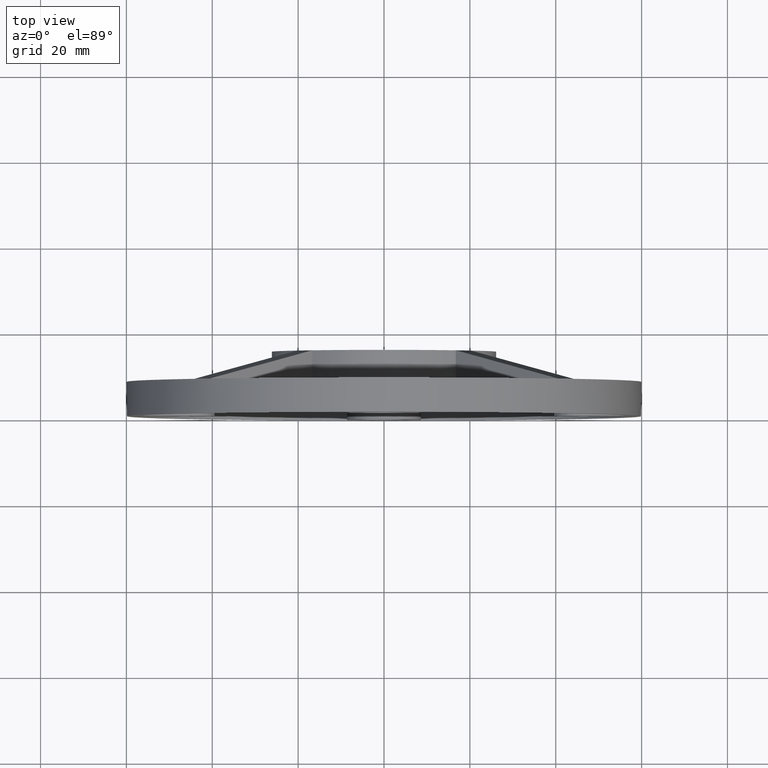
[diagram: clean part render]
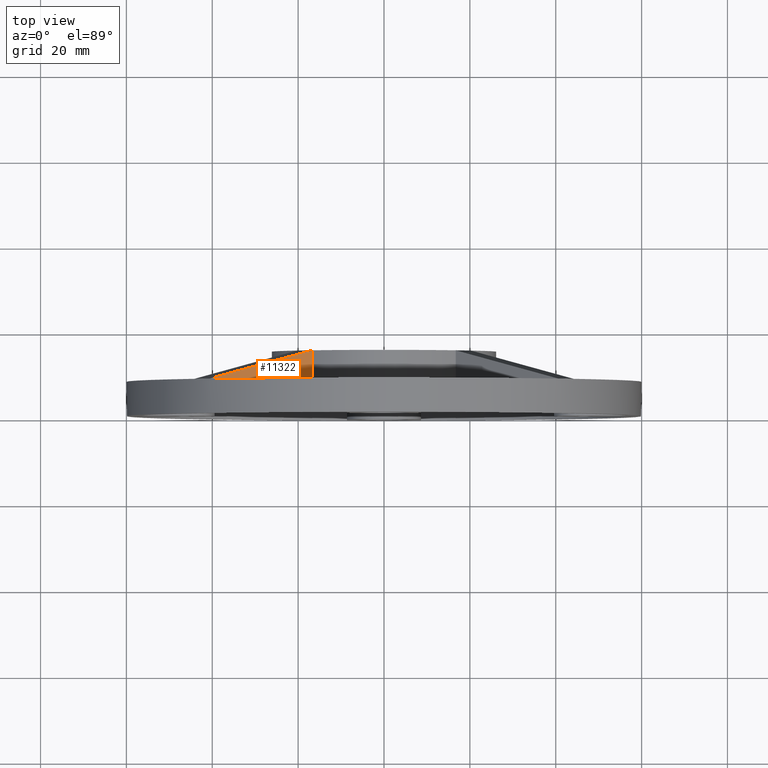
[diagram: same view with one face highlighted and labeled with its STEP entity id]
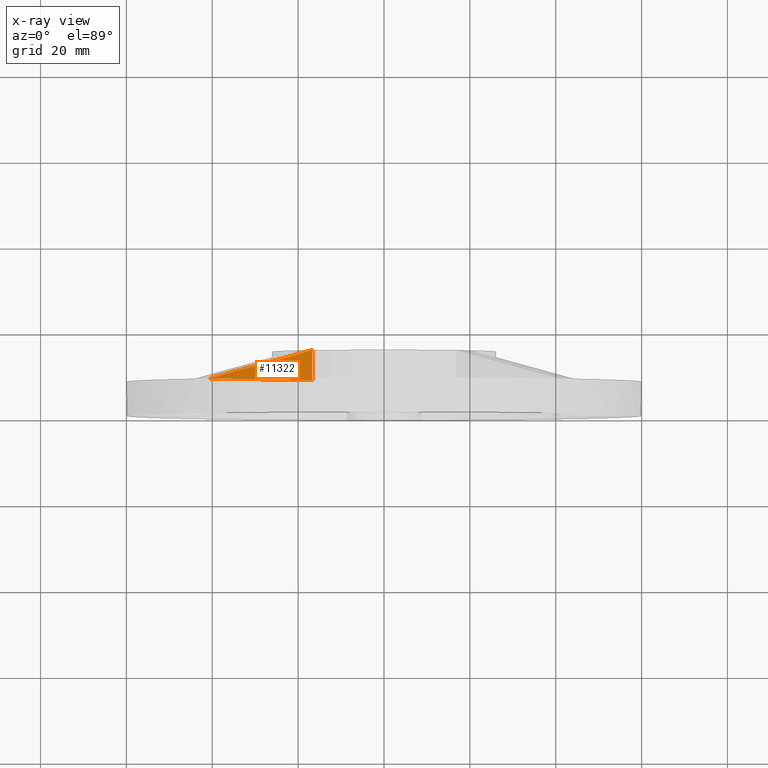
[diagram: x-ray of the same camera — body ghosted, the highlighted face saturated]
A machine part, top view. The second image highlights one B-rep face of the part: STEP entity #11322.
The next image is the same camera in x-ray: the body ghosted, the highlighted face saturated — about 8% of this face is hidden behind the body in this view.
In plain terms, the highlighted planar face has unit normal (-0.7071, 0, -0.7071).
Its self-contained STEP definition (entity closure, byte-faithful):
#806 = ORIENTED_EDGE ( 'NONE', *, *, #9725, .T. ) ;
#1049 = FACE_OUTER_BOUND ( 'NONE', #11827, .T. ) ;
#1546 = DIRECTION ( 'NONE',  ( -0.000000000000000000, -1.000000000000000000, -0.000000000000000000 ) ) ;
#2026 = CARTESIAN_POINT ( 'NONE',  ( -11.26126584575380996, 16.59486603573734342, 14.79679975168651040 ) ) ;
#2045 = LINE ( 'NONE', #7837, #3754 ) ;
#2537 = LINE ( 'NONE', #2026, #5268 ) ;
#2905 = DIRECTION ( 'NONE',  ( -0.6924281307454288603, -0.2026982178135411095, 0.6924281307454264178 ) ) ;
#3222 = AXIS2_PLACEMENT_3D ( 'NONE', #3556, #9965, #6203 ) ;
#3556 = CARTESIAN_POINT ( 'NONE',  ( -16.70941492090176439, 53.81721284095039692, 20.24494882683444530 ) ) ;
#3754 = VECTOR ( 'NONE', #1546, 1000.000000000000000 ) ;
#3811 = CARTESIAN_POINT ( 'NONE',  ( -16.70941492090176439, 8.000000000000000000, 20.24494882683444530 ) ) ;
#4733 = EDGE_CURVE ( 'NONE', #11886, #6781, #2537, .T. ) ;
#5268 = VECTOR ( 'NONE', #2905, 1000.000000000000114 ) ;
#5676 = ORIENTED_EDGE ( 'NONE', *, *, #7403, .F. ) ;
#6203 = DIRECTION ( 'NONE',  ( -0.7071067811865487940, 0.000000000000000000, 0.7071067811865463515 ) ) ;
#6285 = PLANE ( 'NONE',  #3222 ) ;
#6510 = LINE ( 'NONE', #3811, #9951 ) ;
#6683 = CARTESIAN_POINT ( 'NONE',  ( -40.62179544156660427, 8.000000000000000000, 44.15732934749920702 ) ) ;
#6781 = VERTEX_POINT ( 'NONE', #6683 ) ;
#6958 = ORIENTED_EDGE ( 'NONE', *, *, #4733, .T. ) ;
#7403 = EDGE_CURVE ( 'NONE', #11886, #8984, #2045, .T. ) ;
#7837 = CARTESIAN_POINT ( 'NONE',  ( -16.70941492090177150, 53.81721284095039692, 20.24494882683443819 ) ) ;
#8726 = CARTESIAN_POINT ( 'NONE',  ( -16.70941492090176084, 15.00000000000000000, 20.24494882683443819 ) ) ;
#8984 = VERTEX_POINT ( 'NONE', #9497 ) ;
#9497 = CARTESIAN_POINT ( 'NONE',  ( -16.70941492090177150, 8.000000000000000000, 20.24494882683443819 ) ) ;
#9601 = DIRECTION ( 'NONE',  ( 0.7071067811865487940, -0.000000000000000000, -0.7071067811865463515 ) ) ;
#9725 = EDGE_CURVE ( 'NONE', #6781, #8984, #6510, .T. ) ;
#9951 = VECTOR ( 'NONE', #9601, 999.9999999999998863 ) ;
#9965 = DIRECTION ( 'NONE',  ( -0.7071067811865463515, 0.000000000000000000, -0.7071067811865487940 ) ) ;
#11322 = ADVANCED_FACE ( 'NONE', ( #1049 ), #6285, .F. ) ;
#11827 = EDGE_LOOP ( 'NONE', ( #5676, #6958, #806 ) ) ;
#11886 = VERTEX_POINT ( 'NONE', #8726 ) ;